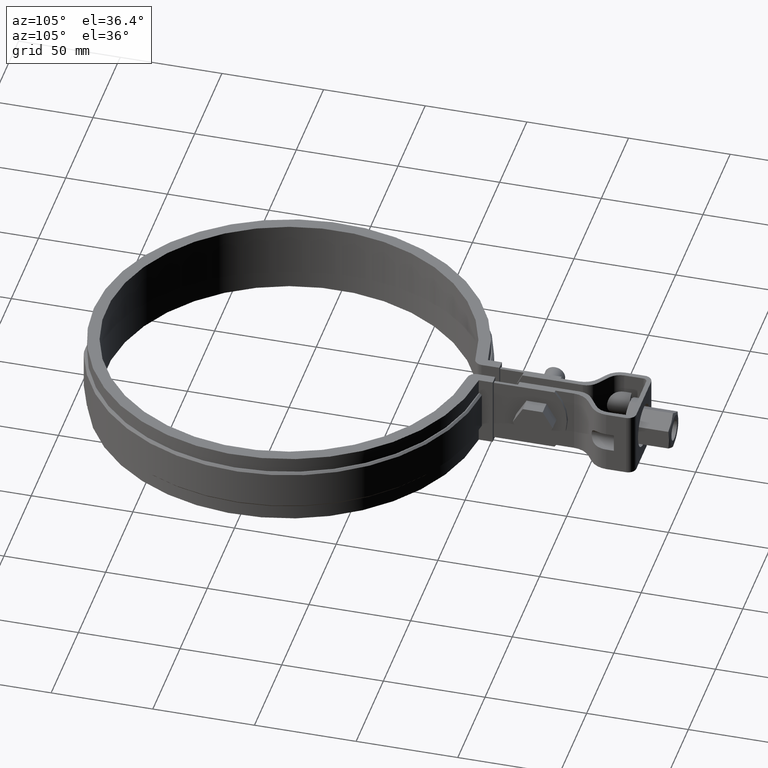
[diagram: clean part render]
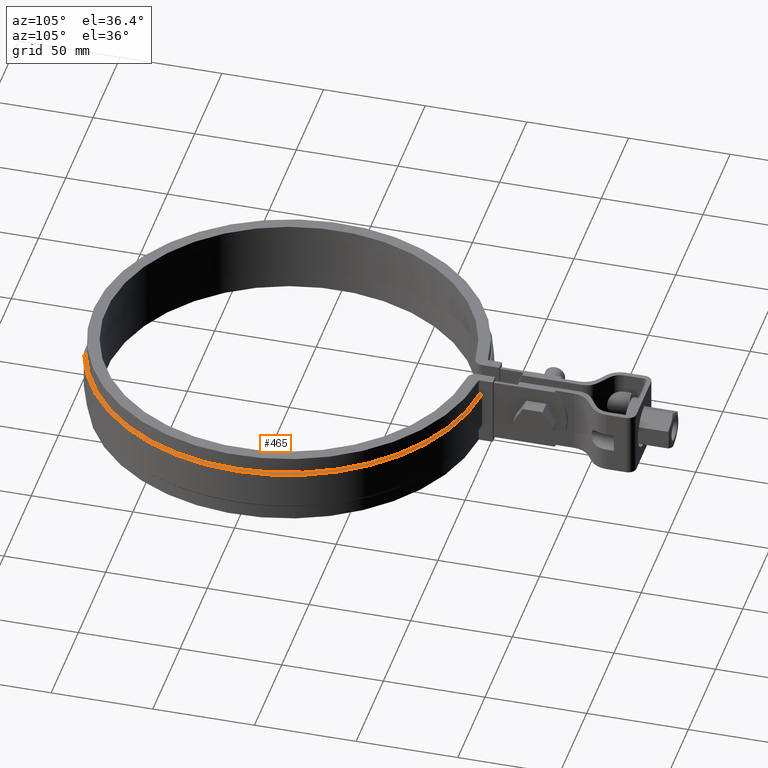
[diagram: same view with one face highlighted and labeled with its STEP entity id]
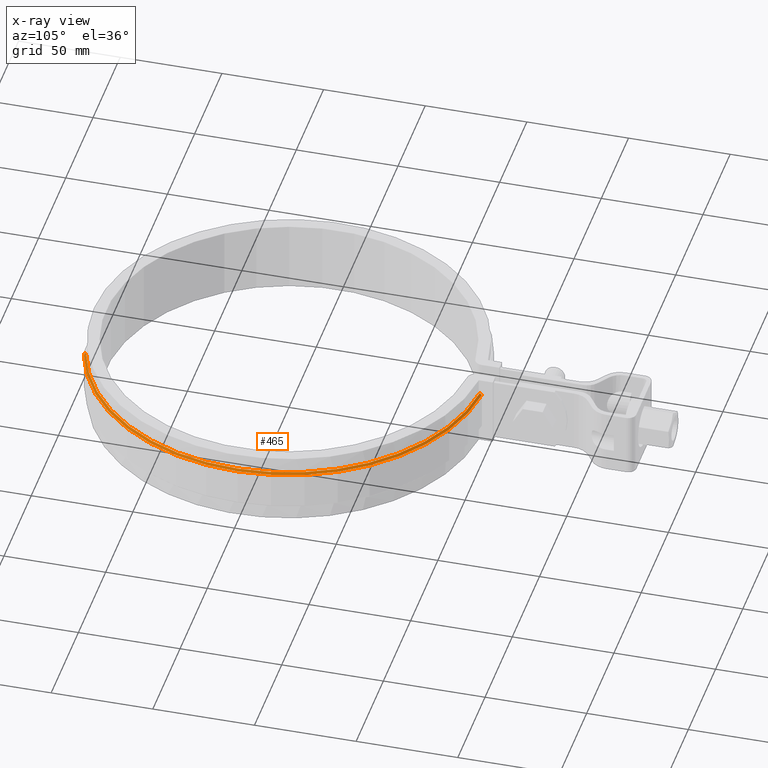
[diagram: x-ray of the same camera — body ghosted, the highlighted face saturated]
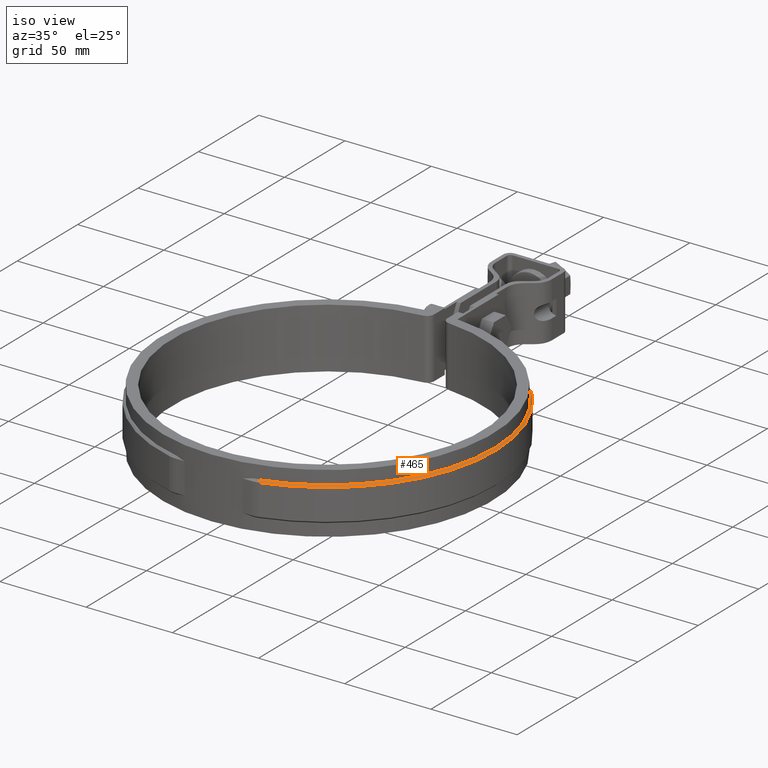
[diagram: same view with one face highlighted and labeled with its STEP entity id]
A machine part, auxiliary view. The second image highlights one B-rep face of the part: STEP entity #465.
The next image is the same camera in x-ray: the body ghosted, the highlighted face saturated — about 0% of this face is hidden behind the body in this view.
A second angle (iso view) of the same face is appended — the face is thin or edge-on in the first view.
In plain terms, the highlighted conical surface has half-angle 45 deg.
Its self-contained STEP definition (entity closure, byte-faithful):
#465 = ADVANCED_FACE( '', ( #828 ), #829, .T. );
#828 = FACE_OUTER_BOUND( '', #1963, .T. );
#829 = CONICAL_SURFACE( '', #1964, 96.5000000000000, 0.785398163397448 );
#1963 = EDGE_LOOP( '', ( #4740, #4741, #4742, #4743 ) );
#1964 = AXIS2_PLACEMENT_3D( '', #4744, #4745, #4746 );
#4740 = ORIENTED_EDGE( '', *, *, #5387, .F. );
#4741 = ORIENTED_EDGE( '', *, *, #5380, .F. );
#4742 = ORIENTED_EDGE( '', *, *, #5396, .F. );
#4743 = ORIENTED_EDGE( '', *, *, #5398, .F. );
#4744 = CARTESIAN_POINT( '', ( 0.000000000000000, 0.000000000000000, -6.00000000000000 ) );
#4745 = DIRECTION( '', ( 0.000000000000000, 0.000000000000000, -1.00000000000000 ) );
#4746 = DIRECTION( '', ( -1.00000000000000, 0.000000000000000, 0.000000000000000 ) );
#5380 = EDGE_CURVE( '', #6140, #6142, #6143, .T. );
#5387 = EDGE_CURVE( '', #6142, #6146, #6153, .T. );
#5396 = EDGE_CURVE( '', #6167, #6140, #6168, .T. );
#5398 = EDGE_CURVE( '', #6146, #6167, #6170, .F. );
#6140 = VERTEX_POINT( '', #9450 );
#6142 = VERTEX_POINT( '', #9452 );
#6143 = CIRCLE( '', #9453, 96.5000000000000 );
#6146 = VERTEX_POINT( '', #9457 );
#6153 = B_SPLINE_CURVE_WITH_KNOTS( '', 3, ( #9471, #9472, #9473, #9474 ), .UNSPECIFIED., .F., .F., ( 4, 4 ), ( 0.000000000000000, 0.00141688251795079 ), .UNSPECIFIED. );
#6167 = VERTEX_POINT( '', #9492 );
#6168 = LINE( '', #9493, #9494 );
#6170 = CIRCLE( '', #9496, 97.5000000000000 );
#9450 = CARTESIAN_POINT( '', ( 25.7864465649357, -92.9909090909091, -6.00000000000000 ) );
#9452 = CARTESIAN_POINT( '', ( 8.40000000000000, 96.1337089682906, -6.00000000000000 ) );
#9453 = AXIS2_PLACEMENT_3D( '', #10156, #10157, #10158 );
#9457 = CARTESIAN_POINT( '', ( 8.39999999999993, 97.1374798931906, -7.00000000000000 ) );
#9471 = CARTESIAN_POINT( '', ( 8.40000000000000, 96.1337089682906, -6.00000000000000 ) );
#9472 = CARTESIAN_POINT( '', ( 8.40000000000000, 96.4683058017109, -6.33332678347911 ) );
#9473 = CARTESIAN_POINT( '', ( 8.40000000000000, 96.8028960429622, -6.66666018436775 ) );
#9474 = CARTESIAN_POINT( '', ( 8.40000000000000, 97.1374798931906, -7.00000000000001 ) );
#9492 = CARTESIAN_POINT( '', ( 26.0536636277848, -93.9545454545455, -7.00000000000000 ) );
#9493 = CARTESIAN_POINT( '', ( 26.0536636277847, -93.9545454545454, -7.00000000000000 ) );
#9494 = VECTOR( '', #10180, 1000.00000000000 );
#9496 = AXIS2_PLACEMENT_3D( '', #10184, #10185, #10186 );
#10156 = CARTESIAN_POINT( '', ( 0.000000000000000, 0.000000000000000, -6.00000000000000 ) );
#10157 = DIRECTION( '', ( 0.000000000000000, 0.000000000000000, 1.00000000000000 ) );
#10158 = DIRECTION( '', ( 1.00000000000000, 0.000000000000000, 0.000000000000000 ) );
#10180 = DIRECTION( '', ( -0.188950997189332, 0.681393807325218, 0.707106781186548 ) );
#10184 = CARTESIAN_POINT( '', ( 0.000000000000000, 0.000000000000000, -7.00000000000000 ) );
#10185 = DIRECTION( '', ( 0.000000000000000, 0.000000000000000, 1.00000000000000 ) );
#10186 = DIRECTION( '', ( 1.00000000000000, 0.000000000000000, 0.000000000000000 ) );